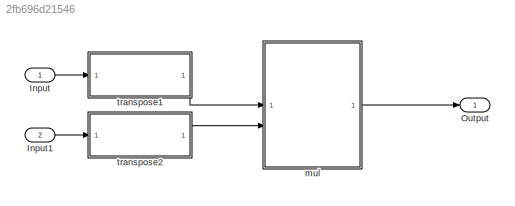
MODEL slx_2fb696d21546
KIND model
CONFIG AbsTol = auto
CONFIG EnableMultiTasking = off
CONFIG FixedStep = auto
CONFIG MaxStep = auto
CONFIG MinStep = auto
CONFIG RelTol = 1e-3
CONFIG SampleTimeConstraint = Unconstrained
CONFIG SolverName = FixedStepAuto
CONFIG StartTime = 0.0
CONFIG StopTime = 10.0
BLOCK [Inport] Input
  PortDimensions = [512 512]
BLOCK [Inport] Input1
  Port = 2
  PortDimensions = [512 512]
BLOCK [Outport] Output
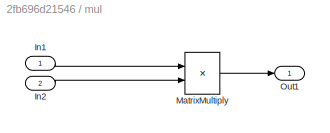
BLOCK [SubSystem] mul
  RTWFcnNameOpts = Use subsystem name
  RTWSystemCode = Reusable function
  TreatAsAtomicUnit = on
BLOCK [Inport] mul/In1
BLOCK [Inport] mul/In2
  Port = 2
BLOCK [Product] mul/MatrixMultiply
  Multiplication = Matrix(*)
BLOCK [Outport] mul/Out1
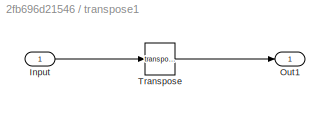
BLOCK [SubSystem] transpose1
  RTWFcnNameOpts = Use subsystem name
  RTWSystemCode = Reusable function
  TreatAsAtomicUnit = on
BLOCK [Inport] transpose1/Input
BLOCK [Outport] transpose1/Out1
BLOCK [Math] transpose1/Transpose
  Operator = transpose
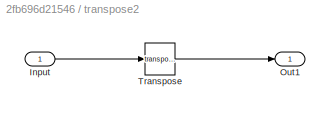
BLOCK [SubSystem] transpose2
  RTWFcnNameOpts = Use subsystem name
  RTWSystemCode = Reusable function
  TreatAsAtomicUnit = on
BLOCK [Inport] transpose2/Input
BLOCK [Outport] transpose2/Out1
BLOCK [Math] transpose2/Transpose
  Operator = transpose
LINE Input1:1 -> transpose2:1
LINE Input:1 -> transpose1:1
LINE mul/In1:1 -> mul/MatrixMultiply:1
LINE mul/In2:1 -> mul/MatrixMultiply:2
LINE mul/MatrixMultiply:1 -> mul/Out1:1
LINE mul:1 -> Output:1
LINE transpose1/Input:1 -> transpose1/Transpose:1
LINE transpose1/Transpose:1 -> transpose1/Out1:1
LINE transpose1:1 -> mul:1
LINE transpose2/Input:1 -> transpose2/Transpose:1
LINE transpose2/Transpose:1 -> transpose2/Out1:1
LINE transpose2:1 -> mul:2
